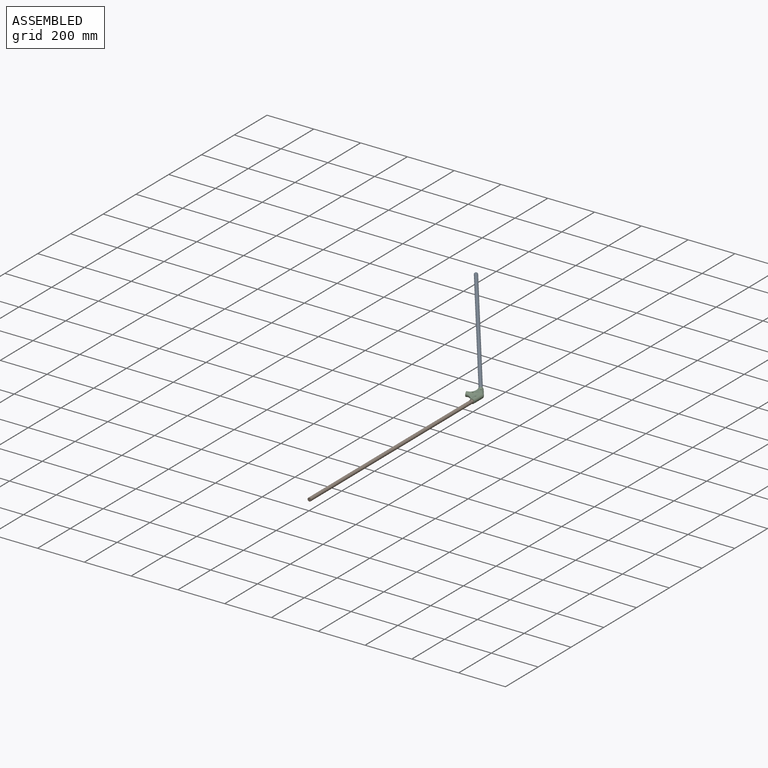
[diagram: assembled view]
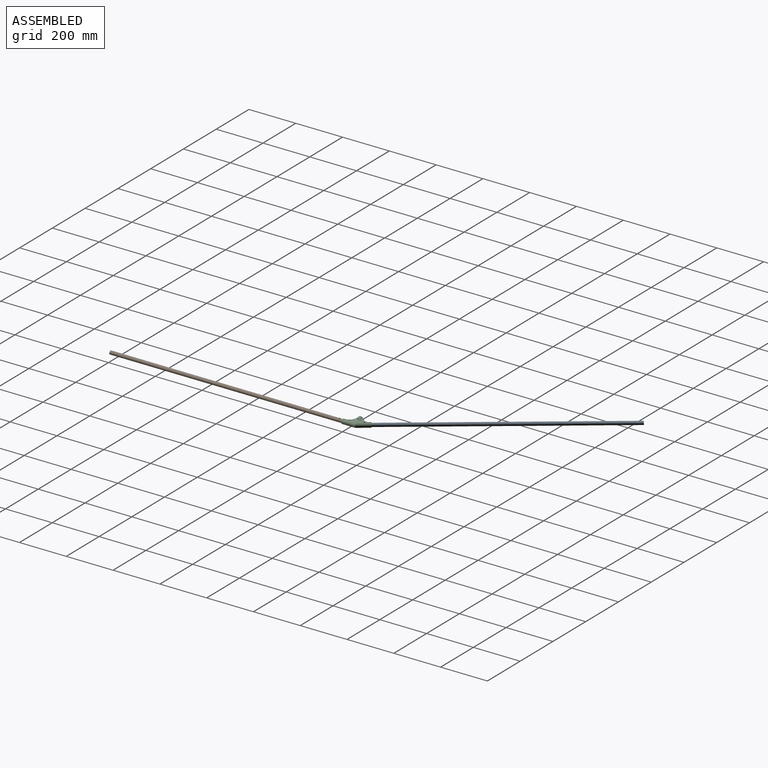
[diagram: assembled view, second angle]
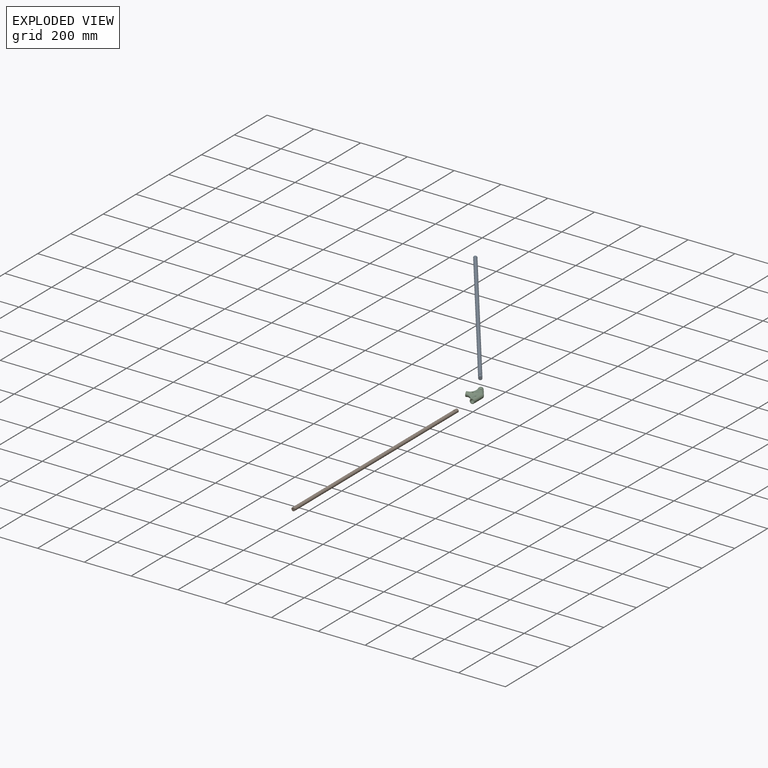
[diagram: exploded view]
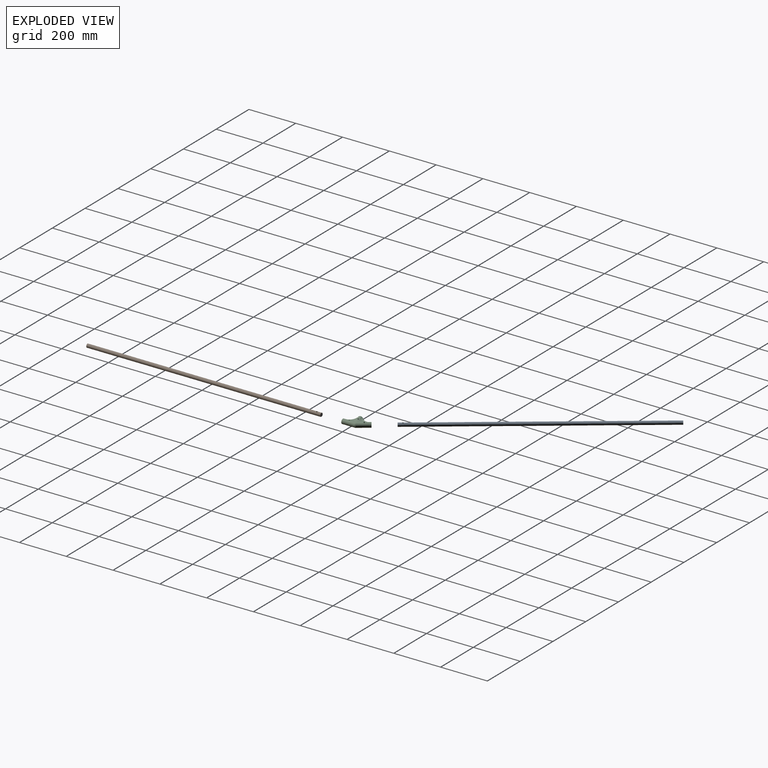
[diagram: exploded view, second angle]
ASSEMBLY  parts=3 mates=2
PART A: 4 faces, bbox 15x1000x15 mm
  f0: cylinder r=7.5mm len=1000mm, axis (0,-1,0), area 47066.1mm2, adj f1,f2,f3
  f1: plane 15x15mm, normal (0,1,0), area 176.7mm2, adj f0
  f2: plane 15x15mm, normal (0,-1,0), area 176.7mm2, adj f0
  f3: cylinder r=3mm len=15mm, axis (0,0,1), area 271.1mm2, adj f0
PART B: same geometry as A
PART C: 37 faces, bbox 110.8x65x20 mm
  f0: bspline ~36.33x32.92mm, area 432.6mm2, adj f7,f17,f20,f32
  f1: bspline ~31.95x26.94mm, area 228.8mm2, adj f2,f14,f17,f19
  f2: bspline ~44.04x37.15mm, area 434.8mm2, adj f1,f3,f17,f19
  f3: bspline ~41.85x30.46mm, area 192.1mm2, adj f2,f4,f26,f27
  f4: bspline ~39.5x29.52mm, area 172.6mm2, adj f3,f5,f26,f27
  f5: bspline ~41.85x30.46mm, area 192.1mm2, adj f4,f6,f26,f27
  f6: bspline ~44.04x37.16mm, area 435.2mm2, adj f5,f13,f18,f19
  f7: bspline ~33.92x28.01mm, area 212.7mm2, adj f0,f8,f16,f17,f20
  f8: bspline ~43.63x35.91mm, area 359.6mm2, adj f7,f9,f17,f20
  f9: bspline ~41.85x30.45mm, area 186.7mm2, adj f8,f10,f26,f28
  f10: bspline ~39.5x29.5mm, area 167mm2, adj f9,f11,f26,f28
  f11: bspline ~41.85x30.45mm, area 186.7mm2, adj f10,f12,f26,f28
  f12: bspline ~43.63x35.9mm, area 359.5mm2, adj f11,f15,f18,f20
  f13: bspline ~31.93x26.92mm, area 228.4mm2, adj f6,f18,f19,f36
  f14: bspline ~34.63x31.38mm, area 306mm2, adj f1,f17,f19
  f15: bspline ~33.92x28.01mm, area 212.9mm2, adj f12,f18,f20,f35
  f16: bspline ~1.33x0.73mm, area 0.2mm2, adj f7,f20,f32
  f17: cylinder r=10mm len=55mm, axis (0,-1,0), area 445.8mm2, adj f0,f1,f2,f7,f8,f14,f26,f34
  f18: cylinder r=10mm len=55mm, axis (0,-1,0), area 445.8mm2, adj f6,f12,f13,f15,f26,f31,f35,f36
  f19: cylinder r=10mm len=57.87mm, axis (-0.95,-0.31,0), area 2144.8mm2, adj f1,f2,f6,f13,f14,f24,f27,f30
  f20: cylinder r=10mm len=57.87mm, axis (0.95,-0.31,0), area 2159.5mm2, adj f0,f7,f8,f12,f15,f16,f24,f28
  f21: cylinder r=7.5mm len=55mm, axis (0,-1,0), area 2224.4mm2, adj f22,f23,f26,f31,f34
  f22: cylinder r=7.5mm len=56.94mm, axis (-0.95,-0.31,0), area 2379.2mm2, adj f21,f25,f27,f30,f33
  f23: cylinder r=7.5mm len=56.94mm, axis (0.95,-0.31,0), area 2367.9mm2, adj f21,f25,f28,f29,f32
  f24: sphere r=10mm, area 125.5mm2, adj f19,f20
  f25: sphere r=7.5mm, area 64.2mm2, adj f22,f23
  f26: plane 20.03x20.03mm, normal (0,1,0), area 137.5mm2, adj f3,f4,f5,f9,f10,f11,f17,f18
  f27: plane 20.03x19.05mm, normal (0.95,0.31,0), area 137.5mm2, adj f3,f4,f5,f19,f22
  f28: plane 20.03x19.05mm, normal (-0.95,0.31,0), area 137.5mm2, adj f9,f10,f11,f20,f23
  f29: cylinder r=3mm len=6.52mm, axis (0,0,1), area 58.2mm2, adj f20,f23,f35
  f30: cylinder r=3mm len=6mm, axis (0,0,1), area 52.2mm2, adj f19,f22
  f31: cylinder r=3mm len=6mm, axis (0,0,1), area 47.1mm2, adj f18,f21
  f32: cylinder r=3mm len=6.17mm, axis (0,0,-1), area 54.6mm2, adj f0,f16,f20,f23
  f33: cylinder r=3mm len=6mm, axis (0,0,-1), area 47.4mm2, adj f19,f22
  f34: cylinder r=3mm len=6mm, axis (0,0,-1), area 50.2mm2, adj f17,f21
  f35: bspline ~32.85x29.77mm, area 438.5mm2, adj f15,f18,f20,f29
  f36: bspline ~32.62x29.56mm, area 232.1mm2, adj f13,f18,f19
PLACE A rot(axis=(0,0,-1),144deg) t=(-596.31,1871.31,28.81)mm
PLACE B t=(-3.23,6.53,28.81)mm
PLACE C rot(axis=(0,0,1),108deg) t=(-3.23,1055,28.81)mm
MATE slider C.f20 <-> B.f0  axis (0,1,0) through (-3.23,1000,28.81)mm
MATE slider C.f19 <-> A.f0  axis (0.59,-0.81,0) through (-35.55,1099.5,28.81)mm
